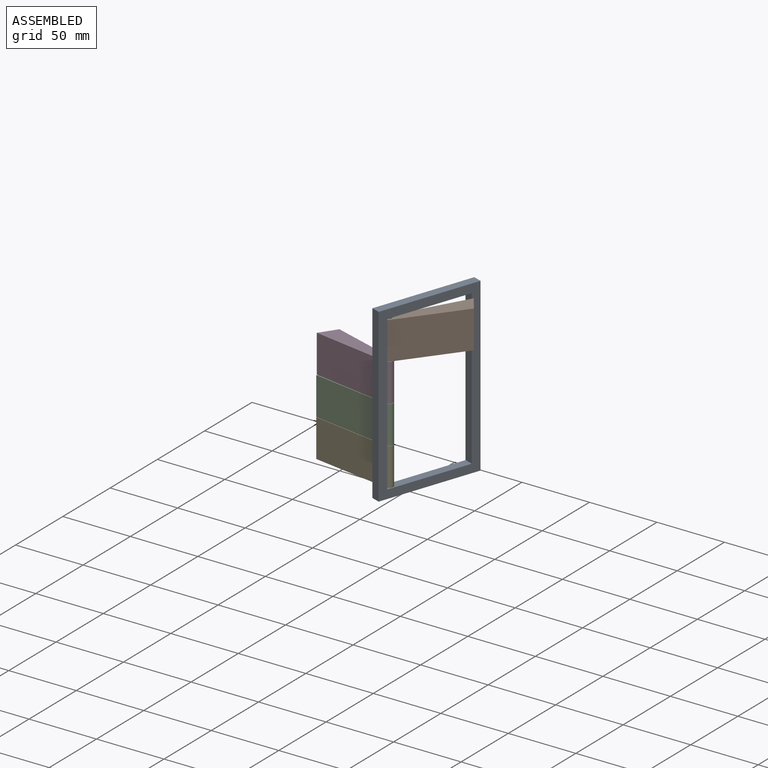
[diagram: assembled view]
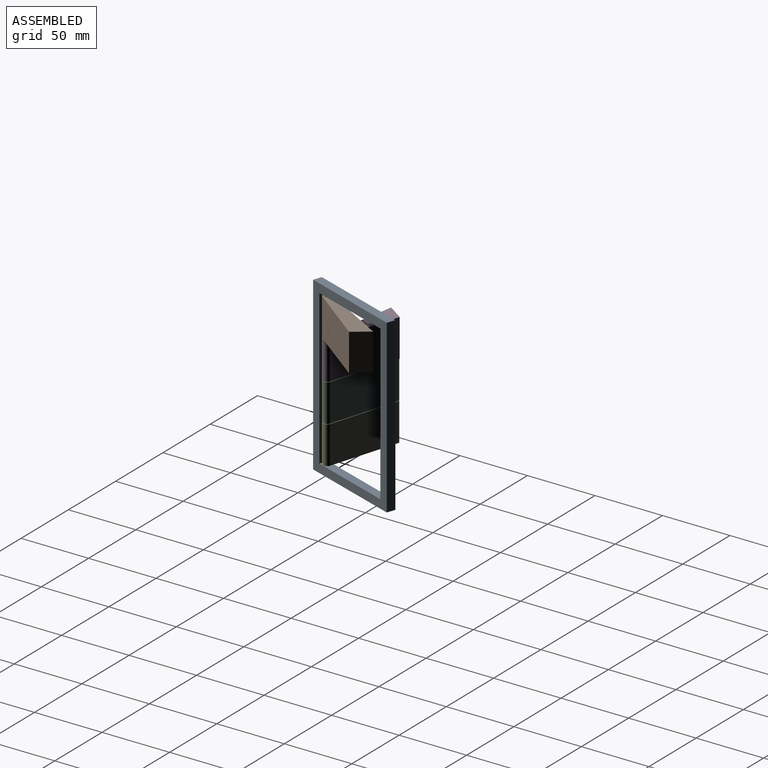
[diagram: assembled view, second angle]
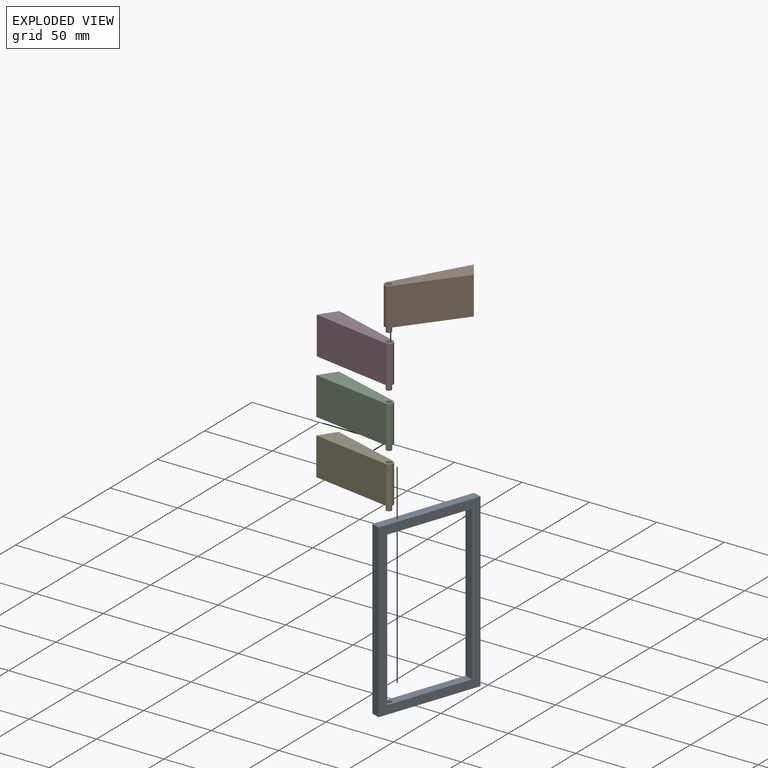
[diagram: exploded view]
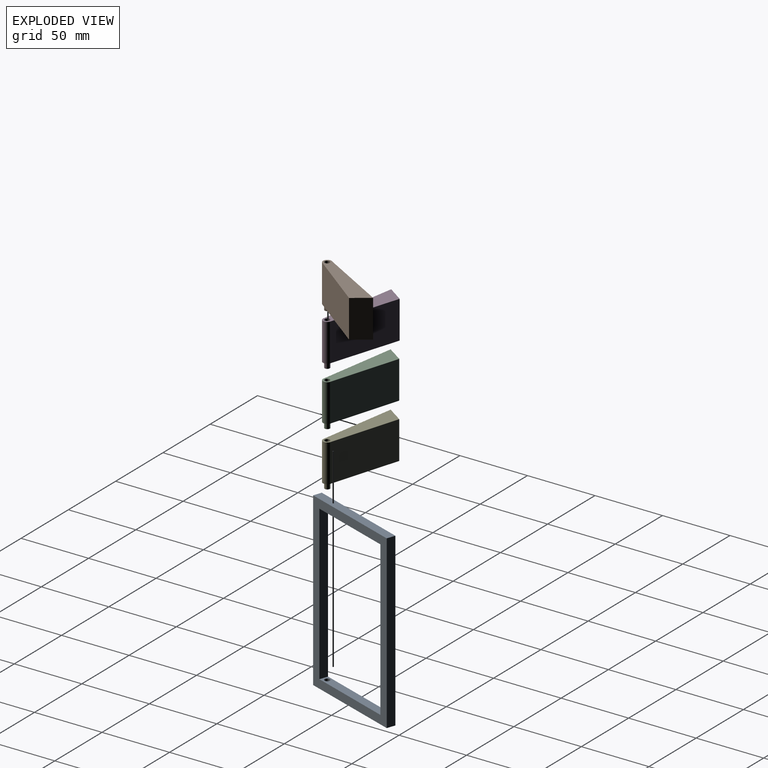
[diagram: exploded view, second angle]
ASSEMBLY  parts=5 mates=4
PART A: 12 faces, bbox 76.2x6.5x127 mm
  f0: plane 114.16x6.48mm, normal (-1,0,0), area 740.1mm2, adj f2,f4,f6,f11
  f1: plane 114.16x6.48mm, normal (1,0,0), area 740.1mm2, adj f2,f4,f6,f11
  f2: plane 127x76.24mm, normal (0,-1,0), area 2461.7mm2, adj f0,f1,f3,f5,f6,f7,f8,f11
  f3: plane 127x6.48mm, normal (1,0,0), area 823.4mm2, adj f2,f4,f7,f8
  f4: plane 127x76.24mm, normal (0,1,0), area 2461.7mm2, adj f0,f1,f3,f5,f6,f7,f8,f11
  f5: plane 127x6.48mm, normal (-1,0,0), area 823.4mm2, adj f2,f4,f7,f8
  f6: plane 63.25x6.48mm, normal (0,0,1), area 397.9mm2, adj f0,f1,f2,f4,f9
  f7: plane 76.24x6.48mm, normal (0,0,-1), area 494.3mm2, adj f2,f3,f4,f5
  f8: plane 76.24x6.48mm, normal (0,0,1), area 494.3mm2, adj f2,f3,f4,f5
  f9: cylinder r=1.97mm len=3.94mm, axis (0,0,1), area 47.2mm2, adj f6,f10
  f10: plane 3.94x3.94mm, normal (0,0,1), area 12.2mm2, adj f9
  f11: plane 63.25x6.48mm, normal (0,0,-1), area 410.1mm2, adj f0,f1,f2,f4
PART B: 10 faces, bbox 61.6x13.4x32 mm
  f0: plane 57.79x27.94mm, normal (0,-1,0), area 1614.8mm2, adj f1,f3,f4,f5
  f1: cylinder r=3.17mm len=27.94mm, axis (0,0,-1), area 296.3mm2, adj f0,f2,f4,f5
  f2: plane 52.24x27.94mm, normal (0.13,0.99,0), area 1472.6mm2, adj f1,f3,f4,f5
  f3: plane 27.94x13.29mm, normal (-0.91,0.42,0), area 409.6mm2, adj f0,f2,f4,f5
  f4: plane 61.6x13.35mm, normal (0,0,1), area 557mm2, adj f0,f1,f2,f3,f6
  f5: plane 61.6x13.35mm, normal (0,0,-1), area 557mm2, adj f0,f1,f2,f3,f8
  f6: cylinder r=1.91mm len=3.81mm, axis (0,0,1), area 45.6mm2, adj f4,f7
  f7: plane 3.81x3.81mm, normal (0,0,1), area 11.4mm2, adj f6
  f8: cylinder r=1.91mm len=4.06mm, axis (0,0,1), area 48.6mm2, adj f5,f9
  f9: plane 3.81x3.81mm, normal (0,0,-1), area 11.4mm2, adj f8
PART C: same geometry as B
PART D: same geometry as B
PART E: same geometry as B
PLACE A rot(axis=(0,0,-1),109.2deg) t=(-30.6,-78.64,-1.82)mm
PLACE B rot(axis=(0,0,-1),119.6deg) t=(-26.99,-68.64,89.36)mm
PLACE C rot(axis=(0,0,-1),9.2deg) t=(-24.78,-73.25,32.97)mm
PLACE D rot(axis=(0,0,-1),9.6deg) t=(-24.8,-73.24,61.17)mm
PLACE E rot(axis=(0,0,-1),9.2deg) t=(-24.78,-73.25,4.78)mm
MATE revolute C.f1 <-> E.f1  axis (0,0,-1) through (-24.28,-70.17,28.91)mm
MATE revolute E.f1 <-> A.f9  axis (0,0,-1) through (-24.28,-70.17,0.72)mm
MATE revolute B.f1 <-> D.f1  axis (0,0,-1) through (-24.28,-70.17,85.3)mm
MATE revolute D.f1 <-> C.f1  axis (0,0,-1) through (-24.28,-70.17,57.1)mm
